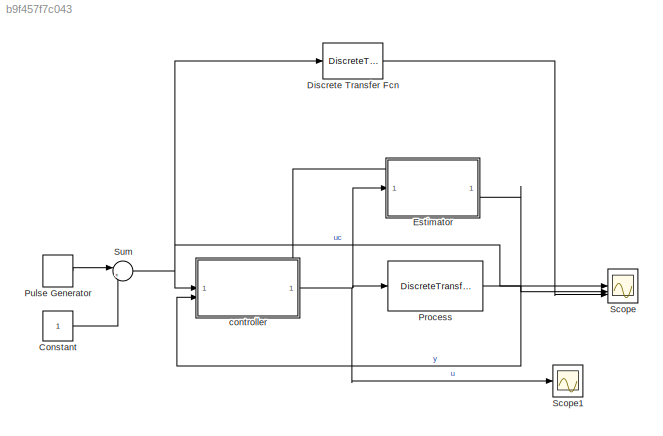
MODEL slx_b9f457f7c043
KIND model
CONFIG AbsTol = auto
CONFIG EnableMultiTasking = off
CONFIG FixedStep = dt
CONFIG MaxStep = auto
CONFIG MinStep = auto
CONFIG RelTol = 1e-3
CONFIG SampleTimeConstraint = Unconstrained
CONFIG SolverName = FixedStepAuto
CONFIG StartTime = t_0
CONFIG StopTime = t_f
BLOCK [Constant] Constant
BLOCK [DiscreteTransferFcn] Discrete Transfer Fcn
  Denominator = Am
  InputPortMap = u0
  Numerator = Bm
  SampleTime = h
  a0EqualsOne = on
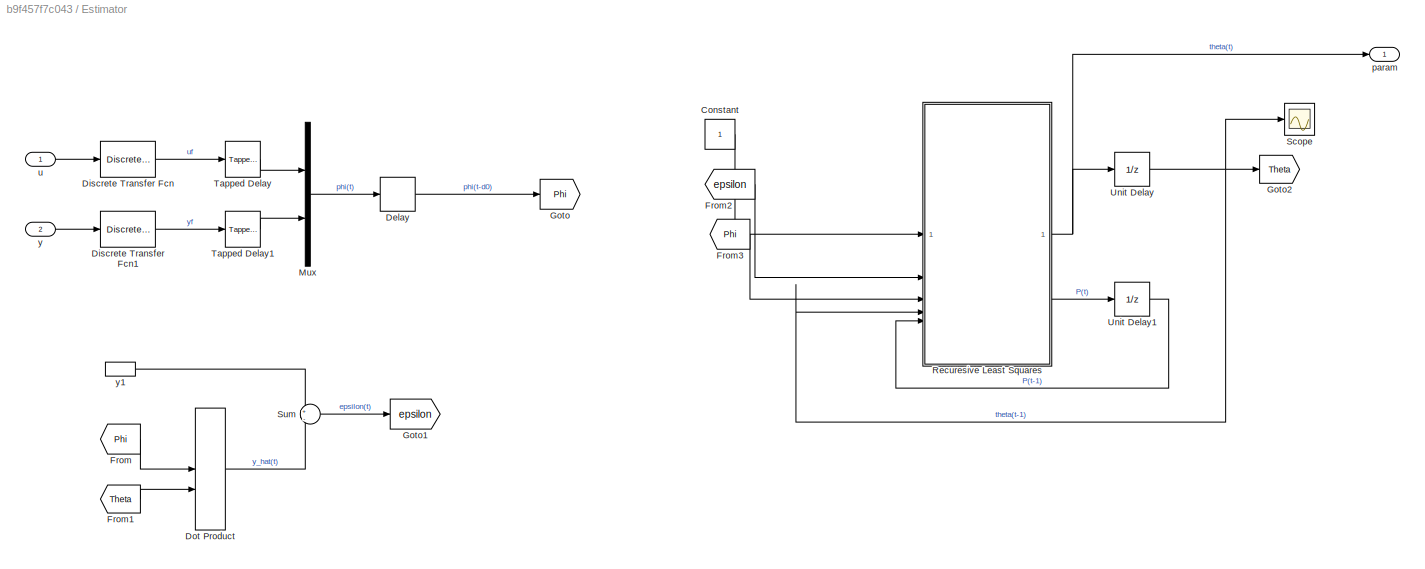
BLOCK [SubSystem] Estimator
  PortSchema = {"entries":[{"content":{"sides":[{"content":{"connectorIds":["In1"]},"type":"ConnectorPlacement.EquallySpacedRectSide","uuid":"d59c4060-ca18-4c06-9040-48d101e58fef"},{"content":{"connectorIds":["In2"],"side":"RIGHT"},"type":"ConnectorPlacement.EquallySpacedRectSide","uuid":"6d166754-2246-4e16-bafc-8a94baa0622a"},{"content":{"connectorIds":["Out1"],"side":"TOP"},"type":"ConnectorPlacement.EquallySp...<+245ch>
BLOCK [Constant] Estimator/Constant
BLOCK [Delay] Estimator/Delay
  DelayLength = d0
  InputPortMap = u0
  SampleTime = h
BLOCK [DiscreteTransferFcn] Estimator/Discrete Transfer Fcn
  Denominator = conv(A0,Am)
  InputPortMap = u0
  SampleTime = h
BLOCK [DiscreteTransferFcn] Estimator/Discrete Transfer Fcn1
  Denominator = conv(A0,Am)
  InputPortMap = u0
  SampleTime = h
BLOCK [DotProduct] Estimator/Dot Product
  OutDataTypeStr = Inherit: Inherit via internal rule
BLOCK [From] Estimator/From
  GotoTag = Phi
BLOCK [From] Estimator/From1
  GotoTag = Theta
BLOCK [From] Estimator/From2
  GotoTag = epsilon
BLOCK [From] Estimator/From3
  GotoTag = Phi
BLOCK [Goto] Estimator/Goto
  GotoTag = Phi
BLOCK [Goto] Estimator/Goto1
  GotoTag = epsilon
BLOCK [Goto] Estimator/Goto2
  GotoTag = Theta
BLOCK [Mux] Estimator/Mux
  DisplayOption = bar
  Inputs = 2
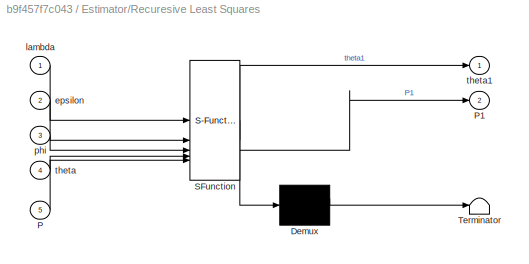
BLOCK [SubSystem] Estimator/Recuresive Least Squares
  ErrorFcn = Stateflow.Translate.translate
  LibrarySourceBlock = simulink/User-Defined\nFunctions/MATLAB Function
  PermitHierarchicalResolution = ExplicitOnly
  SFBlockType = MATLAB Function
  TreatAsAtomicUnit = on
BLOCK [Demux] Estimator/Recuresive Least Squares/ Demux 
  Outputs = 1
BLOCK [S-Function] Estimator/Recuresive Least Squares/ SFunction 
  EnableBusSupport = on
  FunctionName = sf_sfun
  PortCounts = [5 3]
  SFcnIsStateOwnerBlock = off
  SFunctionDeploymentMode = off
  Tag = Stateflow S-Function 2
BLOCK [Terminator] Estimator/Recuresive Least Squares/ Terminator 
BLOCK [Inport] Estimator/Recuresive Least Squares/P
  Port = 5
BLOCK [Outport] Estimator/Recuresive Least Squares/P1
  Port = 2
BLOCK [Inport] Estimator/Recuresive Least Squares/epsilon
  Port = 2
BLOCK [Inport] Estimator/Recuresive Least Squares/lambda
BLOCK [Inport] Estimator/Recuresive Least Squares/phi
  Port = 3
BLOCK [Inport] Estimator/Recuresive Least Squares/theta
  Port = 4
BLOCK [Outport] Estimator/Recuresive Least Squares/theta1
BLOCK [Scope] Estimator/Scope
  Floating = off
  NumInputPorts = 1
  ScopeSpecificationString = Simulink.scopes.TimeScopeBlockCfg('CurrentConfiguration', extmgr.ConfigurationSet(extmgr.Configuration('Core','General UI',true),extmgr.Configuration('Core','Source UI',true),extmgr.Configuration('Sources','WiredSimulink',true,'DataLoggingVariableName','ScopeData2'),extmgr.Configuration('Visuals','Time Domain',true,'SerializedDisplays',{struct('MinYLimReal','-0.6871','MaxYLimReal','0.91905','YLabe...<+1458ch>
BLOCK [Sum] Estimator/Sum
  Inputs = +|-
BLOCK [Reference] Estimator/Tapped Delay  REF=simulink/Discrete/Tapped Delay
  SourceBlock = simulink/Discrete/Tapped Delay
  SourceType = Tapped Delay Line
BLOCK [Reference] Estimator/Tapped Delay1  REF=simulink/Discrete/Tapped Delay
  SourceBlock = simulink/Discrete/Tapped Delay
  SourceType = Tapped Delay Line
BLOCK [UnitDelay] Estimator/Unit Delay
  HasFrameUpgradeWarning = on
  InitialCondition = theta0
  SampleTime = h
BLOCK [UnitDelay] Estimator/Unit Delay1
  HasFrameUpgradeWarning = on
  InitialCondition = P0
  SampleTime = h
BLOCK [Outport] Estimator/param
BLOCK [Inport] Estimator/u
BLOCK [Inport] Estimator/y
  Port = 2
BLOCK [InportShadow] Estimator/y1
  Port = 2
BLOCK [DiscreteTransferFcn] Process
  Denominator = A
  InputPortMap = u0
  Numerator = B
  SampleTime = h
  a0EqualsOne = on
BLOCK [DiscretePulseGenerator] Pulse Generator
  Amplitude = 2
  Period = 50
  PulseType = Time based
  PulseWidth = 50
BLOCK [Scope] Scope
  Floating = off
  NumInputPorts = 3
  ScopeSpecificationString = Simulink.scopes.TimeScopeBlockCfg('CurrentConfiguration', extmgr.ConfigurationSet(extmgr.Configuration('Core','General UI',true),extmgr.Configuration('Core','Source UI',true),extmgr.Configuration('Sources','WiredSimulink',true),extmgr.Configuration('Visuals','Time Domain',true,'SerializedDisplays',{struct('MinYLimReal','-1.43289','MaxYLimReal','1.60696','YLabelReal','','MinYLimMag','0.00000','MaxY...<+1377ch>
BLOCK [Scope] Scope1
  Floating = off
  NumInputPorts = 1
  ScopeSpecificationString = Simulink.scopes.TimeScopeBlockCfg('CurrentConfiguration', extmgr.ConfigurationSet(extmgr.Configuration('Core','General UI',true),extmgr.Configuration('Core','Source UI',true),extmgr.Configuration('Sources','WiredSimulink',true,'DataLoggingVariableName','ScopeData1'),extmgr.Configuration('Visuals','Time Domain',true,'SerializedDisplays',{struct('MinYLimReal','-0.98632','MaxYLimReal','0.98625','YLab...<+1387ch>
BLOCK [Sum] Sum
  Inputs = |+-
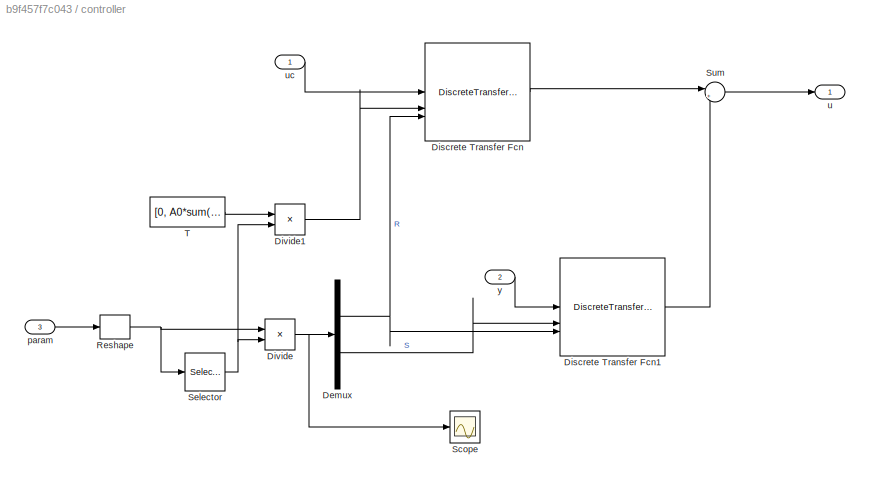
BLOCK [SubSystem] controller
  PortSchema = {"entries":[{"content":{"sides":[{"content":{"connectorIds":["In1","In2"]},"type":"ConnectorPlacement.EquallySpacedRectSide","uuid":"d59c4060-ca18-4c06-9040-48d101e58fef"},{"content":{"connectorIds":["Out1"],"side":"RIGHT"},"type":"ConnectorPlacement.EquallySpacedRectSide","uuid":"6d166754-2246-4e16-bafc-8a94baa0622a"},{"content":{"connectorIds":["In3"],"side":"TOP"},"type":"ConnectorPlacement.Equ...<+251ch>
BLOCK [Demux] controller/Demux
  Outputs = 2
BLOCK [DiscreteTransferFcn] controller/Discrete Transfer Fcn
  DenominatorSource = Input port
  InputPortMap = u0,p1,p3
  NumeratorSource = Input port
  SampleTime = h
  a0EqualsOne = on
BLOCK [DiscreteTransferFcn] controller/Discrete Transfer Fcn1
  DenominatorSource = Input port
  InputPortMap = u0,p1,p3
  NumeratorSource = Input port
  SampleTime = h
  a0EqualsOne = on
BLOCK [Product] controller/Divide
  Inputs = */
BLOCK [Product] controller/Divide1
  Inputs = */
BLOCK [Reshape] controller/Reshape
BLOCK [Scope] controller/Scope
  Floating = off
  NumInputPorts = 1
  ScopeSpecificationString = Simulink.scopes.TimeScopeBlockCfg('CurrentConfiguration', extmgr.ConfigurationSet(extmgr.Configuration('Core','General UI',true),extmgr.Configuration('Core','Source UI',true),extmgr.Configuration('Sources','WiredSimulink',true,'DataLoggingVariableName','ScopeData3'),extmgr.Configuration('Visuals','Time Domain',true,'SerializedDisplays',{struct('MinYLimReal','-1.06644','MaxYLimReal','1.2296','YLabe...<+1423ch>
BLOCK [Selector] controller/Selector
  IndexOptions = Index vector (dialog)
  Indices = [1]
  InputPortWidth = 4
  OutputSizes = 1
BLOCK [Sum] controller/Sum
  Inputs = |+-
BLOCK [Constant] controller/T
  Value = [0, A0*sum(Am)]
BLOCK [Inport] controller/param
  Port = 3
BLOCK [Outport] controller/u
BLOCK [Inport] controller/uc
BLOCK [Inport] controller/y
  Port = 2
LINE Constant:1 -> Sum:2
LINE Discrete Transfer Fcn:1 -> Scope:3
LINE Estimator/Constant:1 -> Estimator/Recuresive Least Squares:1
LINE Estimator/Delay:1 -> Estimator/Goto:1
LINE Estimator/Discrete Transfer Fcn1:1 -> Estimator/Tapped Delay1:1
LINE Estimator/Discrete Transfer Fcn:1 -> Estimator/Tapped Delay:1
LINE Estimator/Dot Product:1 -> Estimator/Sum:2
LINE Estimator/From1:1 -> Estimator/Dot Product:2
LINE Estimator/From2:1 -> Estimator/Recuresive Least Squares:2
LINE Estimator/From3:1 -> Estimator/Recuresive Least Squares:3
LINE Estimator/From:1 -> Estimator/Dot Product:1
LINE Estimator/Mux:1 -> Estimator/Delay:1
NET Estimator/Recuresive Least Squares:1 -> Estimator/Unit Delay:1, Estimator/param:1
LINE Estimator/Recuresive Least Squares:2 -> Estimator/Unit Delay1:1
LINE Estimator/Sum:1 -> Estimator/Goto1:1
LINE Estimator/Tapped Delay1:1 -> Estimator/Mux:2
LINE Estimator/Tapped Delay:1 -> Estimator/Mux:1
LINE Estimator/Unit Delay1:1 -> Estimator/Recuresive Least Squares:5
NET Estimator/Unit Delay:1 -> Estimator/Goto2:1, Estimator/Recuresive Least Squares:4, Estimator/Scope:1
LINE Estimator/u:1 -> Estimator/Discrete Transfer Fcn:1
LINE Estimator/y1:1 -> Estimator/Sum:1
LINE Estimator/y:1 -> Estimator/Discrete Transfer Fcn1:1
LINE Estimator:1 -> controller:3
NET Process:1 -> Estimator:2, Scope:2, controller:2
LINE Pulse Generator:1 -> Sum:1
NET Sum:1 -> Discrete Transfer Fcn:1, Scope:1, controller:1
NET controller/Demux:1 -> controller/Discrete Transfer Fcn1:3, controller/Discrete Transfer Fcn:3
LINE controller/Demux:2 -> controller/Discrete Transfer Fcn1:2
LINE controller/Discrete Transfer Fcn1:1 -> controller/Sum:2
LINE controller/Discrete Transfer Fcn:1 -> controller/Sum:1
LINE controller/Divide1:1 -> controller/Discrete Transfer Fcn:2
NET controller/Divide:1 -> controller/Demux:1, controller/Scope:1
NET controller/Reshape:1 -> controller/Divide:1, controller/Selector:1
NET controller/Selector:1 -> controller/Divide1:2, controller/Divide:2
LINE controller/Sum:1 -> controller/u:1
LINE controller/T:1 -> controller/Divide1:1
LINE controller/param:1 -> controller/Reshape:1
LINE controller/uc:1 -> controller/Discrete Transfer Fcn:1
LINE controller/y:1 -> controller/Discrete Transfer Fcn1:1
NET controller:1 -> Estimator:1, Process:1, Scope1:1
note: NET lines group one-source signal fan-out (src -> all destinations, sorted); 1:1 wires keep LINE
CHART Estimator/Recuresive Least Squares states=1 transitions=1
  STATE_LABEL 'eML_blk_kernel()'
  STATE_LABEL "SCRIPT:\nfunction [theta1, P1] = rls(lambda, epsilon, phi, theta, P)\nK = P * phi / (lambda + phi'*P*phi);\nP1 = (eye(4) - K*phi') * P / lambda;\ntheta1 = theta + P1 * phi * epsilon;"
CHART  states=0 transitions=0
